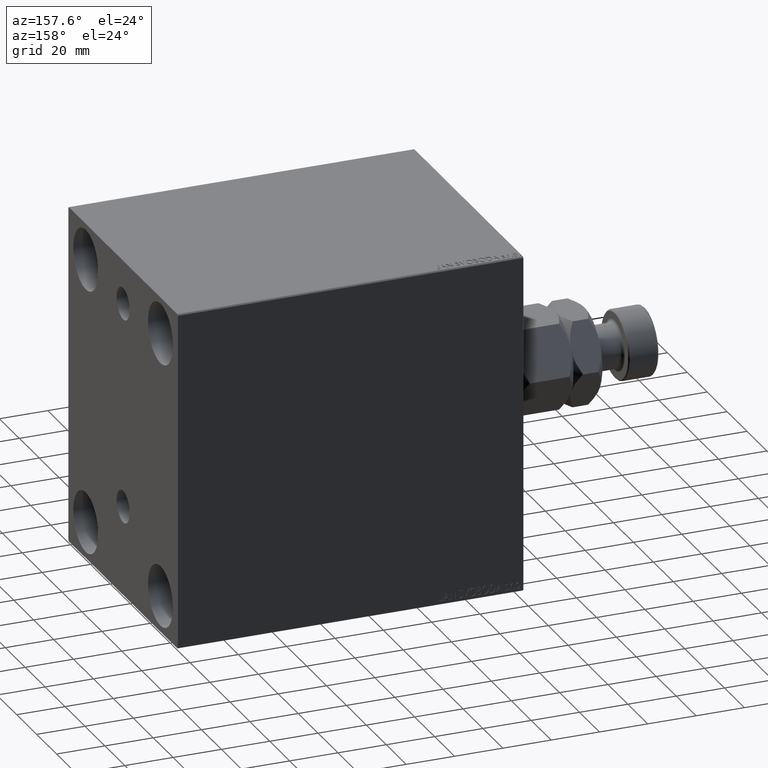
[diagram: clean part render]
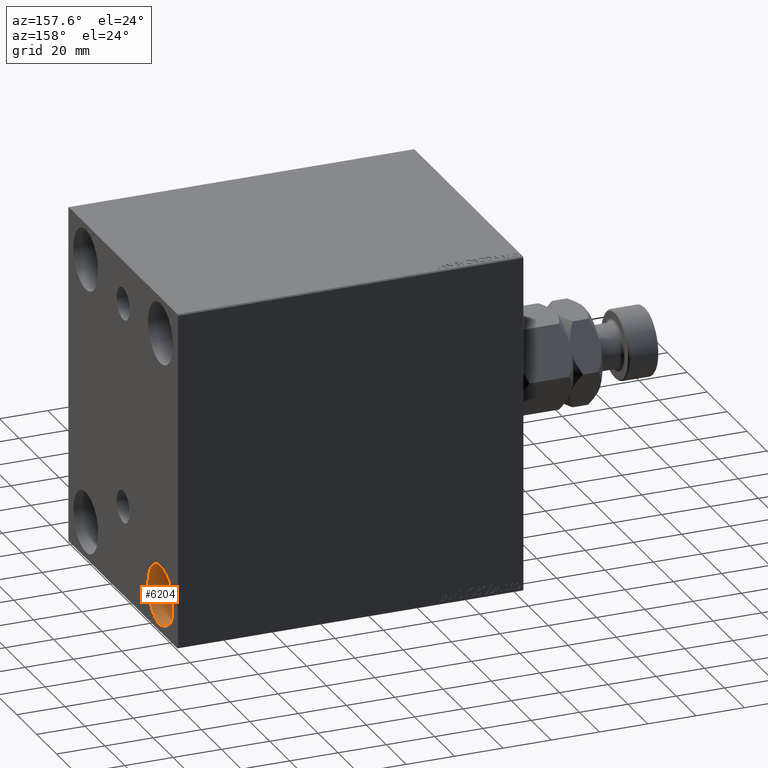
[diagram: same view with one face highlighted and labeled with its STEP entity id]
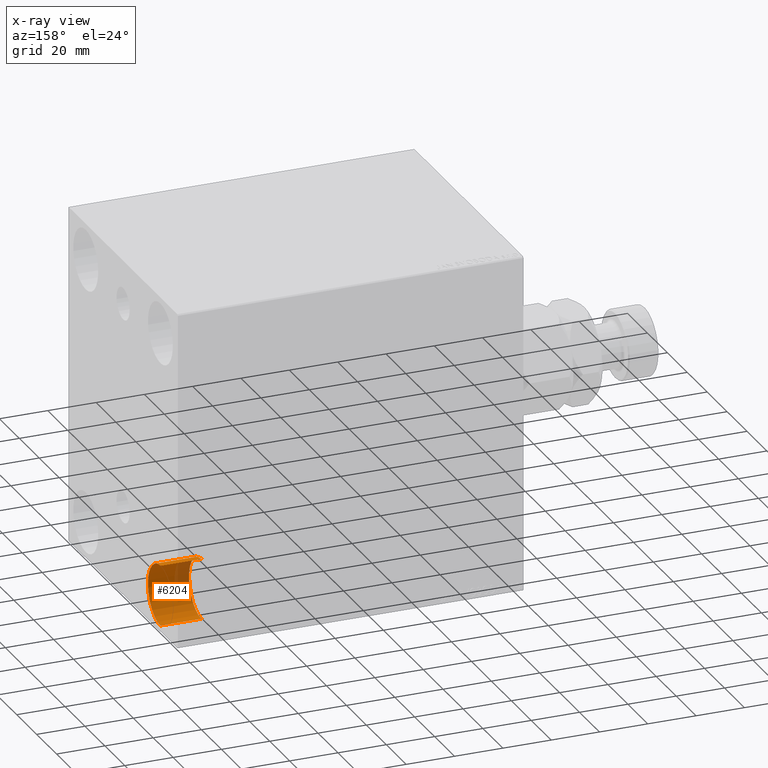
[diagram: x-ray of the same camera — body ghosted, the highlighted face saturated]
A machine part, auxiliary view. The second image highlights one B-rep face of the part: STEP entity #6204.
The next image is the same camera in x-ray: the body ghosted, the highlighted face saturated — about 22% of this face is hidden behind the body in this view.
In plain terms, the highlighted cylindrical surface (edge-blend (fillet) strip) has radius 12.5 mm, axis along (1, 0, 0).
Its self-contained STEP definition (entity closure, byte-faithful):
#1279 = CYLINDRICAL_SURFACE ( 'NONE', #40100, 12.49999999999999645 ) ;
#2426 = VERTEX_POINT ( 'NONE', #41777 ) ;
#4731 = VERTEX_POINT ( 'NONE', #27090 ) ;
#5750 = CARTESIAN_POINT ( 'NONE',  ( 143.0000000000000000, 37.49999999999997868, -42.49999999999999289 ) ) ;
#6204 = ADVANCED_FACE ( 'NONE', ( #25482 ), #1279, .F. ) ;
#7586 = CARTESIAN_POINT ( 'NONE',  ( 126.0000000000000000, 37.49999999999997868, -67.49999999999998579 ) ) ;
#8581 = VECTOR ( 'NONE', #17724, 1000.000000000000000 ) ;
#8659 = ORIENTED_EDGE ( 'NONE', *, *, #45350, .T. ) ;
#9412 = EDGE_CURVE ( 'NONE', #4731, #2426, #17490, .T. ) ;
#10573 = CARTESIAN_POINT ( 'NONE',  ( 126.0000000000000000, 37.49999999999997868, -54.99999999999999289 ) ) ;
#14257 = CARTESIAN_POINT ( 'NONE',  ( 143.0000000000000000, 37.49999999999997868, -54.99999999999999289 ) ) ;
#15313 = CARTESIAN_POINT ( 'NONE',  ( 126.0000000000000000, 37.49999999999997868, -54.99999999999999289 ) ) ;
#17396 = ORIENTED_EDGE ( 'NONE', *, *, #43310, .T. ) ;
#17490 = LINE ( 'NONE', #7586, #8581 ) ;
#17724 = DIRECTION ( 'NONE',  ( 1.000000000000000000, -0.000000000000000000, -0.000000000000000000 ) ) ;
#19499 = CIRCLE ( 'NONE', #45230, 12.49999999999999645 ) ;
#19562 = CARTESIAN_POINT ( 'NONE',  ( 126.0000000000000000, 37.49999999999997868, -42.49999999999999289 ) ) ;
#21685 = VECTOR ( 'NONE', #37117, 1000.000000000000000 ) ;
#23088 = LINE ( 'NONE', #23794, #21685 ) ;
#23794 = CARTESIAN_POINT ( 'NONE',  ( 126.0000000000000000, 37.49999999999997868, -42.49999999999999289 ) ) ;
#24416 = DIRECTION ( 'NONE',  ( 0.000000000000000000, 0.000000000000000000, 1.000000000000000000 ) ) ;
#25482 = FACE_OUTER_BOUND ( 'NONE', #29777, .T. ) ;
#25925 = DIRECTION ( 'NONE',  ( 0.000000000000000000, 0.000000000000000000, -1.000000000000000000 ) ) ;
#27090 = CARTESIAN_POINT ( 'NONE',  ( 126.0000000000000000, 37.49999999999997868, -67.49999999999998579 ) ) ;
#28317 = DIRECTION ( 'NONE',  ( -1.000000000000000000, -0.000000000000000000, -0.000000000000000000 ) ) ;
#28948 = ORIENTED_EDGE ( 'NONE', *, *, #9412, .F. ) ;
#29777 = EDGE_LOOP ( 'NONE', ( #8659, #17396, #30946, #28948 ) ) ;
#30946 = ORIENTED_EDGE ( 'NONE', *, *, #37547, .F. ) ;
#31516 = VERTEX_POINT ( 'NONE', #19562 ) ;
#31533 = DIRECTION ( 'NONE',  ( 0.000000000000000000, 0.000000000000000000, 1.000000000000000000 ) ) ;
#31882 = AXIS2_PLACEMENT_3D ( 'NONE', #14257, #28317, #31533 ) ;
#37026 = CIRCLE ( 'NONE', #31882, 12.49999999999999645 ) ;
#37117 = DIRECTION ( 'NONE',  ( 1.000000000000000000, -0.000000000000000000, -0.000000000000000000 ) ) ;
#37547 = EDGE_CURVE ( 'NONE', #2426, #42207, #37026, .T. ) ;
#40100 = AXIS2_PLACEMENT_3D ( 'NONE', #15313, #43412, #25925 ) ;
#41777 = CARTESIAN_POINT ( 'NONE',  ( 143.0000000000000000, 37.49999999999997868, -67.49999999999998579 ) ) ;
#42207 = VERTEX_POINT ( 'NONE', #5750 ) ;
#43310 = EDGE_CURVE ( 'NONE', #31516, #42207, #23088, .T. ) ;
#43412 = DIRECTION ( 'NONE',  ( 1.000000000000000000, -0.000000000000000000, -0.000000000000000000 ) ) ;
#45230 = AXIS2_PLACEMENT_3D ( 'NONE', #10573, #45363, #24416 ) ;
#45350 = EDGE_CURVE ( 'NONE', #4731, #31516, #19499, .T. ) ;
#45363 = DIRECTION ( 'NONE',  ( -1.000000000000000000, -0.000000000000000000, -0.000000000000000000 ) ) ;